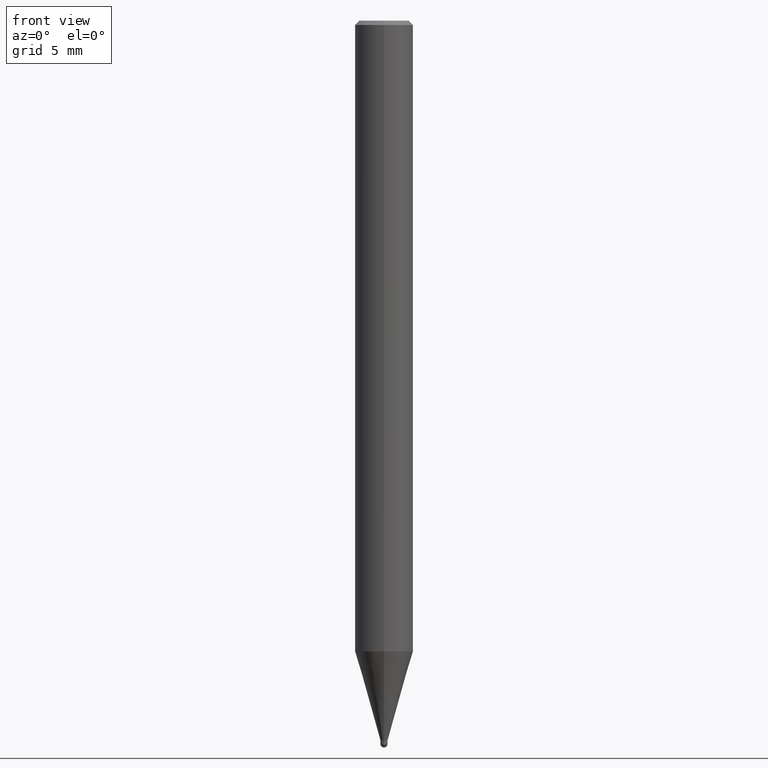
[diagram: clean part render]
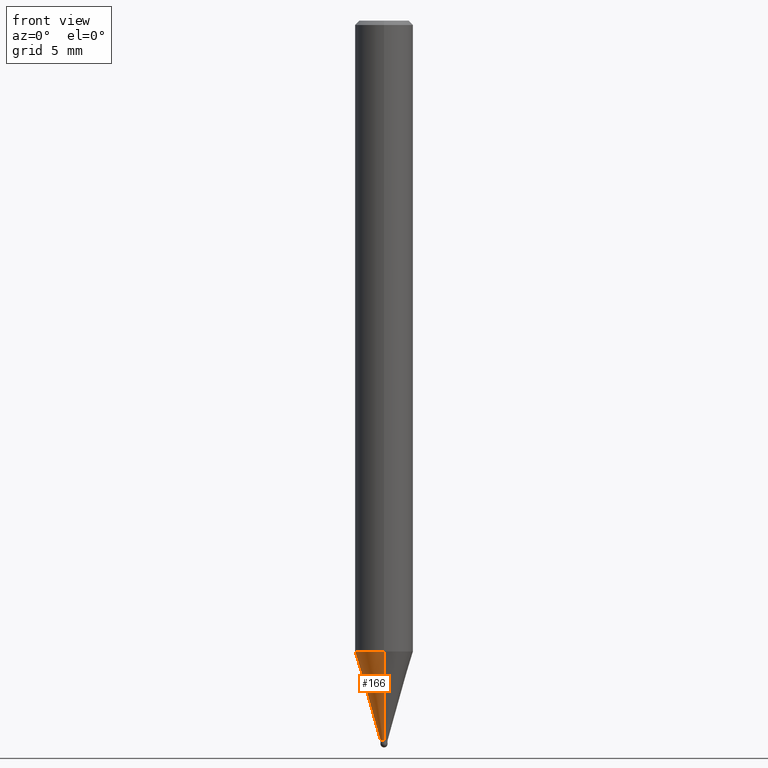
[diagram: same view with one face highlighted and labeled with its STEP entity id]
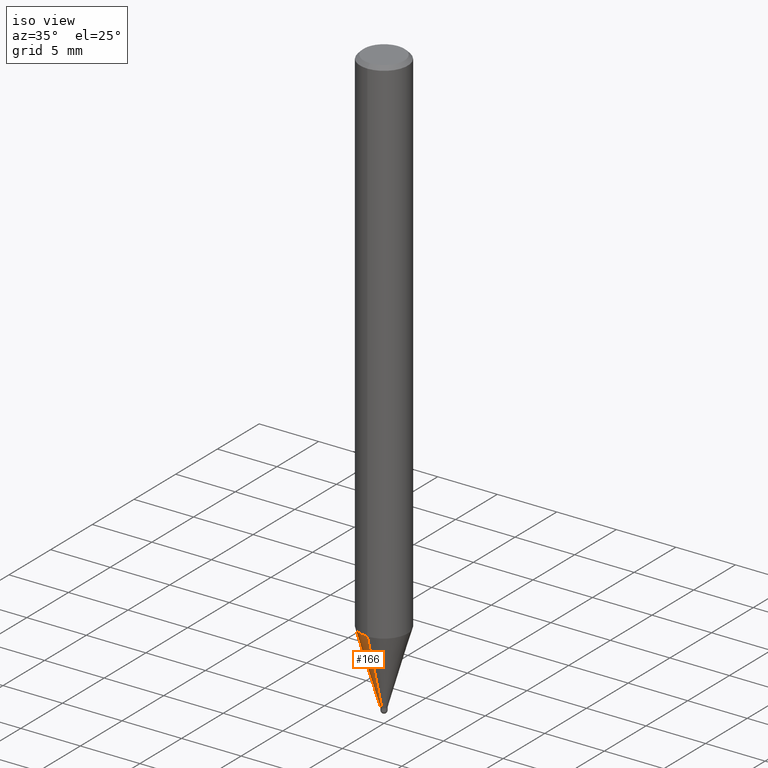
[diagram: same view with one face highlighted and labeled with its STEP entity id]
A machine part, front view. The second image highlights one B-rep face of the part: STEP entity #166.
A second angle (iso view) of the same face is appended — the face is thin or edge-on in the first view.
In plain terms, the highlighted conical surface has half-angle 16 deg.
Its self-contained STEP definition (entity closure, byte-faithful):
#106=VERTEX_POINT('',#232);
#114=EDGE_CURVE('',#126,#174,#242,.T.);
#122=VERTEX_POINT('',#252);
#126=VERTEX_POINT('',#256);
#148=EDGE_CURVE('',#106,#174,#280,.T.);
#152=EDGE_CURVE('',#126,#122,#284,.T.);
#166=ADVANCED_FACE('',(#302),#303,.T.);
#174=VERTEX_POINT('',#312);
#186=EDGE_CURVE('',#122,#106,#326,.T.);
#232=CARTESIAN_POINT('',(0.0,1.99995,-43.397));
#242=CIRCLE('',#385,0.24995);
#252=CARTESIAN_POINT('',(2.44915147732706E-016,-1.99995,-43.397));
#256=CARTESIAN_POINT('',(3.06090358137903E-017,-0.24995,-49.5));
#280=LINE('',#428,#429);
#284=LINE('',#434,#435);
#302=FACE_OUTER_BOUND('',#456,.T.);
#303=CONICAL_SURFACE('',#457,1.12495,0.27925160696619);
#312=CARTESIAN_POINT('',(0.0,0.24995,-49.5));
#326=CIRCLE('',#486,1.99995);
#385=AXIS2_PLACEMENT_3D('',#535,#536,#537);
#428=CARTESIAN_POINT('',(-1.37762091773248E-016,1.12495,-46.4485));
#429=VECTOR('',#578,1.0);
#434=CARTESIAN_POINT('',(1.37762091773248E-016,-1.12495,-46.4485));
#435=VECTOR('',#579,1.0);
#456=EDGE_LOOP('',(#609,#610,#611,#612));
#457=AXIS2_PLACEMENT_3D('',#613,#614,#615);
#486=AXIS2_PLACEMENT_3D('',#644,#645,#646);
#535=CARTESIAN_POINT('',(0.0,0.0,-49.5));
#536=DIRECTION('',(0.0,0.0,-1.0));
#537=DIRECTION('',(0.0,1.0,0.0));
#578=DIRECTION('',(3.37545993768291E-017,-0.275636324043808,-0.961261991793921));
#579=DIRECTION('',(3.37545993768291E-017,-0.275636324043808,0.961261991793921));
#609=ORIENTED_EDGE('',*,*,#148,.T.);
#610=ORIENTED_EDGE('',*,*,#114,.F.);
#611=ORIENTED_EDGE('',*,*,#152,.T.);
#612=ORIENTED_EDGE('',*,*,#186,.T.);
#613=CARTESIAN_POINT('',(0.0,0.0,-46.4485));
#614=DIRECTION('',(-0.0,-0.0,1.0));
#615=DIRECTION('',(0.0,1.0,0.0));
#644=CARTESIAN_POINT('',(0.0,0.0,-43.397));
#645=DIRECTION('',(0.0,0.0,-1.0));
#646=DIRECTION('',(0.0,1.0,0.0));